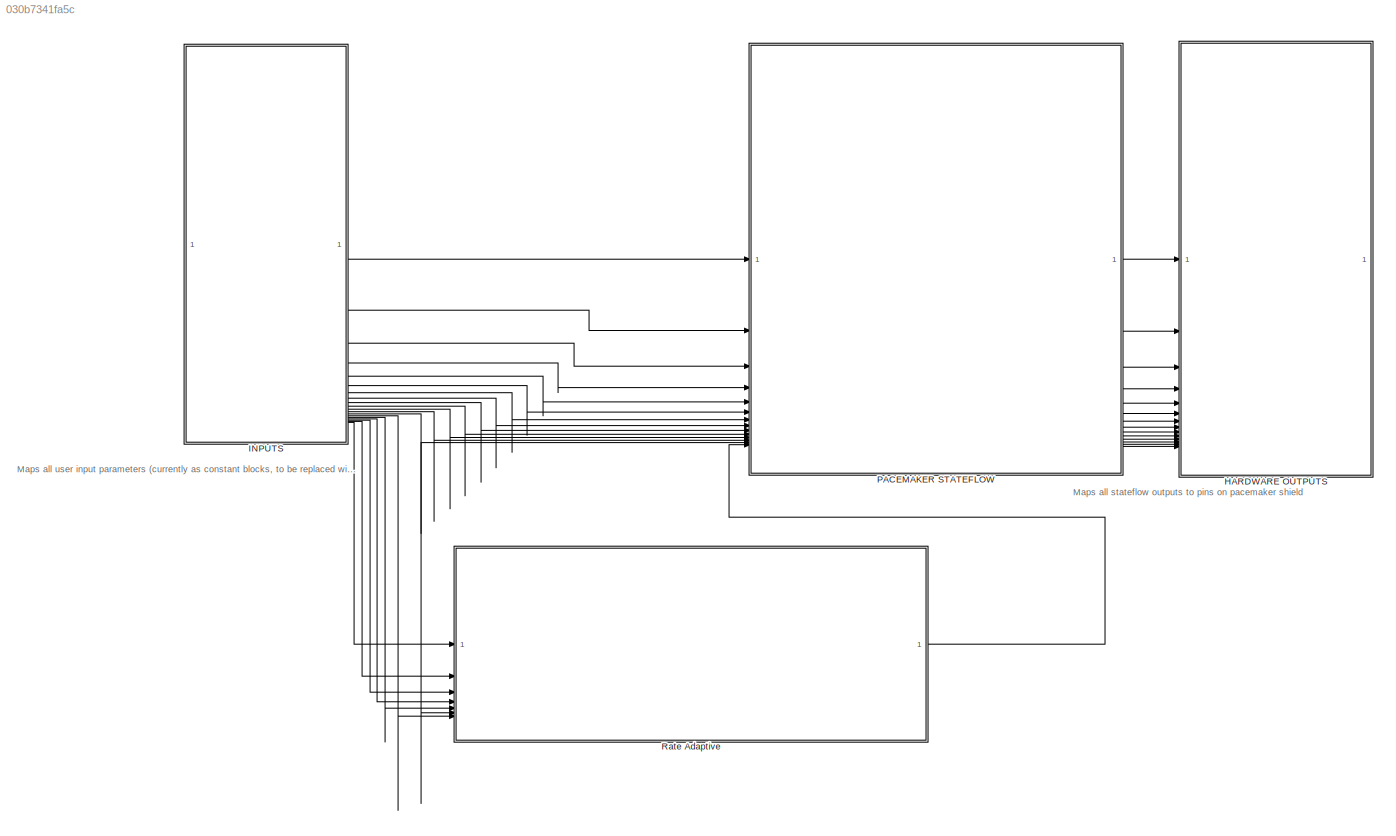
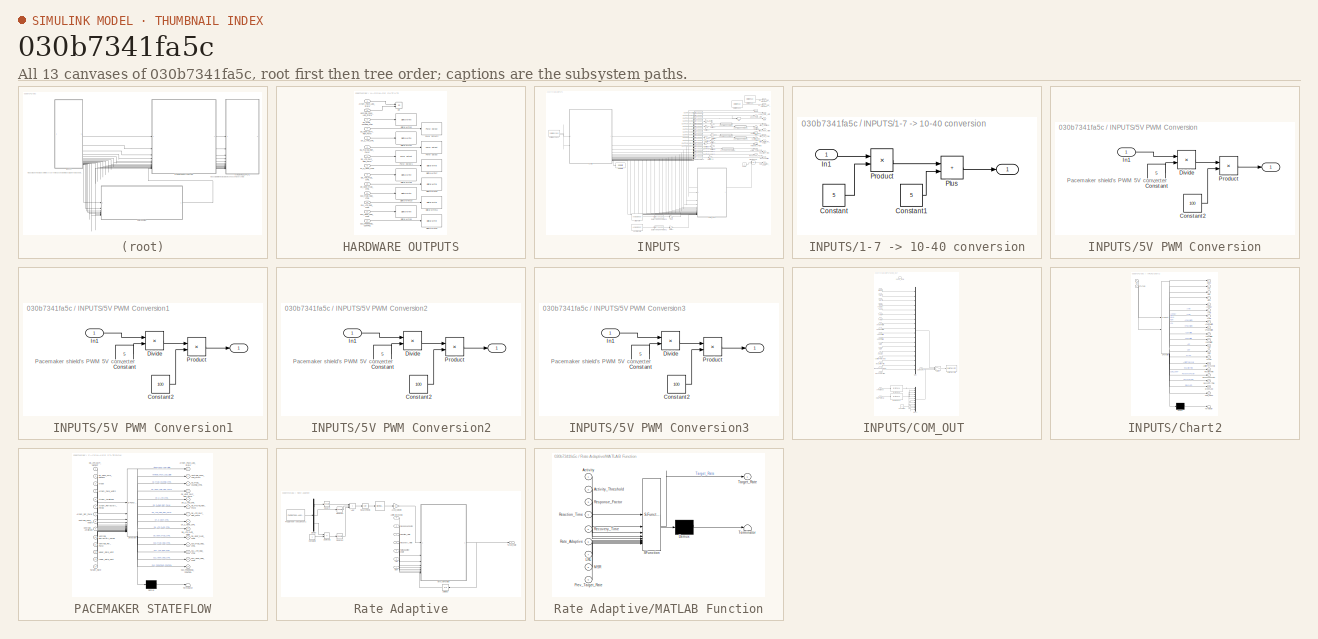
[diagram: thumbnail index - all 13 canvases of the model, root first then tree order]
MODEL slx_030b7341fa5c
KIND model
CONFIG AbsTol = auto
CONFIG EnableMultiTasking = on
CONFIG FixedStep = 1e-3
CONFIG MaxStep = auto
CONFIG MinStep = auto
CONFIG RelTol = 1e-3
CONFIG SampleTimeConstraint = Unconstrained
CONFIG SolverName = FixedStepAuto
CONFIG StartTime = 0.0
CONFIG StopTime = 100
BLOCK [SubSystem] HARDWARE OUTPUTS
BLOCK [Inport] HARDWARE OUTPUTS/Atrium_Pace_LED_State
BLOCK [Inport] HARDWARE OUTPUTS/D10_PACE_GND_CTRL
  Port = 11
BLOCK [Inport] HARDWARE OUTPUTS/D11_ATR_GND_CTRL
  Port = 12
BLOCK [Inport] HARDWARE OUTPUTS/D12_VENT_GND_CTRL
  Port = 13
BLOCK [Inport] HARDWARE OUTPUTS/D13_FRONTEND_CONTROL
  Port = 14
BLOCK [Inport] HARDWARE OUTPUTS/D2_PACE_CHARGE_CTRL
  Port = 3
BLOCK [Inport] HARDWARE OUTPUTS/D3_VENT_CMP_REF_PWM
  Port = 4
BLOCK [Inport] HARDWARE OUTPUTS/D4_Z_ATR_CTRL
  Port = 5
BLOCK [Inport] HARDWARE OUTPUTS/D5_PACING_REF_PWM
  Port = 6
BLOCK [Inport] HARDWARE OUTPUTS/D6_ATR_CMP_REF_PWM
  Port = 7
BLOCK [Inport] HARDWARE OUTPUTS/D7_Z_VENT_CTRL
  Port = 8
BLOCK [Inport] HARDWARE OUTPUTS/D8_ATR_PACE_CTRL
  Port = 9
BLOCK [Inport] HARDWARE OUTPUTS/D9_VENT_PACE_CTRL
  Port = 10
BLOCK [Reference] HARDWARE OUTPUTS/Digital Write10  REF=frdmk64flib/Digital Write
  SourceBlock = frdmk64flib/Digital Write
  SourceType = freedomk64f.DigitalWrite
BLOCK [Reference] HARDWARE OUTPUTS/Digital Write11  REF=frdmk64flib/Digital Write
  SourceBlock = frdmk64flib/Digital Write
  SourceType = freedomk64f.DigitalWrite
BLOCK [Reference] HARDWARE OUTPUTS/Digital Write2  REF=frdmk64flib/Digital Write
  SourceBlock = frdmk64flib/Digital Write
  SourceType = freedomk64f.DigitalWrite
BLOCK [Reference] HARDWARE OUTPUTS/Digital Write4  REF=frdmk64flib/Digital Write
  SourceBlock = frdmk64flib/Digital Write
  SourceType = freedomk64f.DigitalWrite
BLOCK [Reference] HARDWARE OUTPUTS/Digital Write5  REF=frdmk64flib/Digital Write
  SourceBlock = frdmk64flib/Digital Write
  SourceType = freedomk64f.DigitalWrite
BLOCK [Reference] HARDWARE OUTPUTS/Digital Write6  REF=frdmk64flib/Digital Write
  SourceBlock = frdmk64flib/Digital Write
  SourceType = freedomk64f.DigitalWrite
BLOCK [Reference] HARDWARE OUTPUTS/Digital Write7  REF=frdmk64flib/Digital Write
  SourceBlock = frdmk64flib/Digital Write
  SourceType = freedomk64f.DigitalWrite
BLOCK [Reference] HARDWARE OUTPUTS/Digital Write8  REF=frdmk64flib/Digital Write
  SourceBlock = frdmk64flib/Digital Write
  SourceType = freedomk64f.DigitalWrite
BLOCK [Reference] HARDWARE OUTPUTS/Digital Write9  REF=frdmk64flib/Digital Write
  SourceBlock = frdmk64flib/Digital Write
  SourceType = freedomk64f.DigitalWrite
BLOCK [Logic] HARDWARE OUTPUTS/OR
  AllPortsSameDT = off
  IconShape = distinctive
  Operator = OR
  OutDataTypeStr = boolean
BLOCK [Reference] HARDWARE OUTPUTS/PWM Output  REF=frdmk64flib/PWM Output
  SourceBlock = frdmk64flib/PWM Output
  SourceType = freedomk64f.PWMOutput
BLOCK [Reference] HARDWARE OUTPUTS/PWM Output1  REF=frdmk64flib/PWM Output
  SourceBlock = frdmk64flib/PWM Output
  SourceType = freedomk64f.PWMOutput
BLOCK [Reference] HARDWARE OUTPUTS/PWM Output2  REF=frdmk64flib/PWM Output
  SourceBlock = frdmk64flib/PWM Output
  SourceType = freedomk64f.PWMOutput
BLOCK [Inport] HARDWARE OUTPUTS/Ventricle_Pace_LED_State
  Port = 2
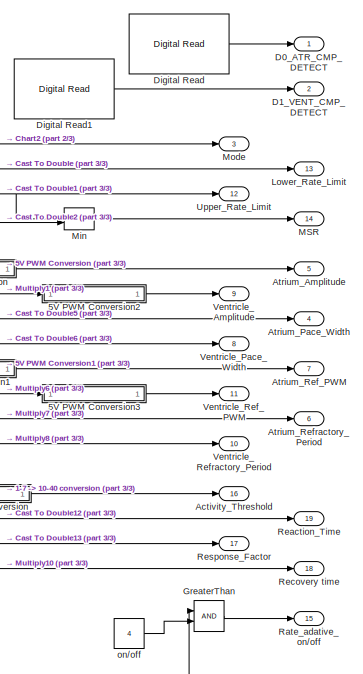
[diagram: INPUTS - part 1/3, top right region]
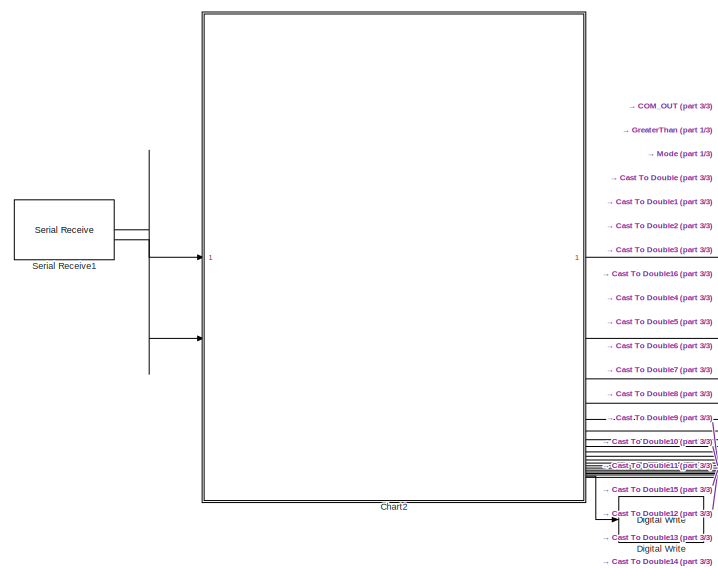
[diagram: INPUTS - part 2/3, middle left region]
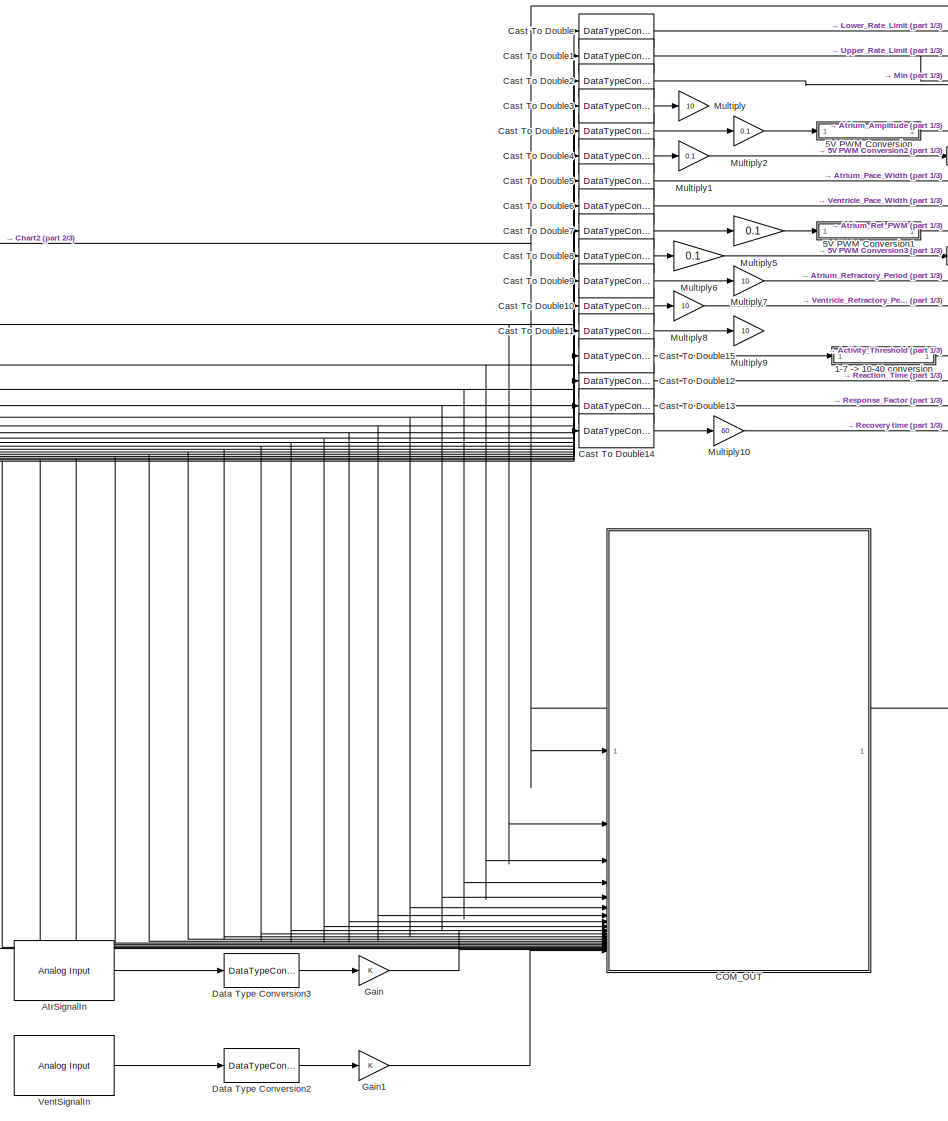
[diagram: INPUTS - part 3/3, center side, full height]
BLOCK [SubSystem] INPUTS
BLOCK [SubSystem] INPUTS/1-7 -> 10-40 conversion
BLOCK [Outport] INPUTS/1-7 -> 10-40 conversion/ 
BLOCK [Constant] INPUTS/1-7 -> 10-40 conversion/Constant
  Value = 5
BLOCK [Constant] INPUTS/1-7 -> 10-40 conversion/Constant1
  Value = 5
BLOCK [Inport] INPUTS/1-7 -> 10-40 conversion/In1
BLOCK [Sum] INPUTS/1-7 -> 10-40 conversion/Plus
  IconShape = rectangular
BLOCK [Product] INPUTS/1-7 -> 10-40 conversion/Product
BLOCK [SubSystem] INPUTS/5V PWM Conversion
BLOCK [Outport] INPUTS/5V PWM Conversion/ 
BLOCK [Constant] INPUTS/5V PWM Conversion/Constant
  Value = 5
BLOCK [Constant] INPUTS/5V PWM Conversion/Constant2
  Value = 100
BLOCK [Product] INPUTS/5V PWM Conversion/Divide
  Inputs = */
BLOCK [Inport] INPUTS/5V PWM Conversion/In1
BLOCK [Product] INPUTS/5V PWM Conversion/Product
BLOCK [SubSystem] INPUTS/5V PWM Conversion1
BLOCK [Outport] INPUTS/5V PWM Conversion1/ 
BLOCK [Constant] INPUTS/5V PWM Conversion1/Constant
  Value = 5
BLOCK [Constant] INPUTS/5V PWM Conversion1/Constant2
  Value = 100
BLOCK [Product] INPUTS/5V PWM Conversion1/Divide
  Inputs = */
BLOCK [Inport] INPUTS/5V PWM Conversion1/In1
BLOCK [Product] INPUTS/5V PWM Conversion1/Product
BLOCK [SubSystem] INPUTS/5V PWM Conversion2
BLOCK [Outport] INPUTS/5V PWM Conversion2/ 
BLOCK [Constant] INPUTS/5V PWM Conversion2/Constant
  Value = 5
BLOCK [Constant] INPUTS/5V PWM Conversion2/Constant2
  Value = 100
BLOCK [Product] INPUTS/5V PWM Conversion2/Divide
  Inputs = */
BLOCK [Inport] INPUTS/5V PWM Conversion2/In1
BLOCK [Product] INPUTS/5V PWM Conversion2/Product
BLOCK [SubSystem] INPUTS/5V PWM Conversion3
BLOCK [Outport] INPUTS/5V PWM Conversion3/ 
BLOCK [Constant] INPUTS/5V PWM Conversion3/Constant
  Value = 5
BLOCK [Constant] INPUTS/5V PWM Conversion3/Constant2
  Value = 100
BLOCK [Product] INPUTS/5V PWM Conversion3/Divide
  Inputs = */
BLOCK [Inport] INPUTS/5V PWM Conversion3/In1
BLOCK [Product] INPUTS/5V PWM Conversion3/Product
BLOCK [Outport] INPUTS/Activity_Threshold
  Port = 16
BLOCK [Reference] INPUTS/AtrSignalIn  REF=frdmk64flib/Analog Input
  SourceBlock = frdmk64flib/Analog Input
  SourceType = freedomk64f.AnalogInput
BLOCK [Outport] INPUTS/Atrium_Amplitude
  Port = 5
BLOCK [Outport] INPUTS/Atrium_Pace_Width
  Port = 4
BLOCK [Outport] INPUTS/Atrium_Ref_PWM
  Port = 7
BLOCK [Outport] INPUTS/Atrium_Refractory_Period
  Port = 6
BLOCK [SubSystem] INPUTS/COM_OUT 
  TreatAsAtomicUnit = on
BLOCK [Inport] INPUTS/COM_OUT /AAmp
  Port = 6
BLOCK [Inport] INPUTS/COM_OUT /APulseWidth
  Port = 8
BLOCK [Inport] INPUTS/COM_OUT /ARP
  Port = 12
BLOCK [Inport] INPUTS/COM_OUT /ASensitivity
  Port = 10
BLOCK [Inport] INPUTS/COM_OUT /ATRSignal
  Port = 20
BLOCK [Inport] INPUTS/COM_OUT /AVDelay
  Port = 5
BLOCK [Inport] INPUTS/COM_OUT /ActivityThreshold
  Port = 15
BLOCK [Reference] INPUTS/COM_OUT /Byte Pack  REF=etargetslib/Byte Pack
  LibrarySourceBlock = embeddedtargetslib/Host Communication/Byte Pack
  SourceBlock = etargetslib/Byte Pack
  SourceType = Byte pack
BLOCK [Reference] INPUTS/COM_OUT /Byte Pack1  REF=etargetslib/Byte Pack
  LibrarySourceBlock = embeddedtargetslib/Host Communication/Byte Pack
  SourceBlock = etargetslib/Byte Pack
  SourceType = Byte pack
BLOCK [Inport] INPUTS/COM_OUT /COM_SWAP
  Port = 19
BLOCK [Constant] INPUTS/COM_OUT /Constant1
  OutDataTypeStr = uint8
  Value = 0
BLOCK [Inport] INPUTS/COM_OUT /LRL
  Port = 2
BLOCK [Inport] INPUTS/COM_OUT /MSR
  Port = 4
BLOCK [Inport] INPUTS/COM_OUT /Mode
BLOCK [Mux] INPUTS/COM_OUT /Mux
  DisplayOption = bar
  Inputs = 18
BLOCK [Mux] INPUTS/COM_OUT /Mux1
  DisplayOption = bar
  Inputs = 12
BLOCK [Inport] INPUTS/COM_OUT /PVARP
  Port = 14
BLOCK [Inport] INPUTS/COM_OUT /ReactionTime
  Port = 16
BLOCK [Inport] INPUTS/COM_OUT /RecoveryTime
  Port = 18
BLOCK [Inport] INPUTS/COM_OUT /ResponseFactor
  Port = 17
BLOCK [Reference] INPUTS/COM_OUT /Serial Transmit1  REF=frdmk64flib/Serial Transmit
  SourceBlock = frdmk64flib/Serial Transmit
  SourceType = freedomk64f.SCIWrite
BLOCK [Switch] INPUTS/COM_OUT /Switch
  Criteria = u2 ~= 0
  InputSameDT = off
  SaturateOnIntegerOverflow = off
BLOCK [Inport] INPUTS/COM_OUT /URL
  Port = 3
BLOCK [Inport] INPUTS/COM_OUT /VAmp
  Port = 7
BLOCK [Inport] INPUTS/COM_OUT /VENTSignal
  Port = 21
BLOCK [Inport] INPUTS/COM_OUT /VPulseWidth
  Port = 9
BLOCK [Inport] INPUTS/COM_OUT /VRP
  Port = 13
BLOCK [Inport] INPUTS/COM_OUT /VSensitivity
  Port = 11
BLOCK [TriggerPort] INPUTS/COM_OUT /send_DCM
  FunctionName = send_DCM
  IsSimulinkFunction = on
  StatesWhenEnabling = held
  TriggerType = function-call
  VariantControl = (inherit)
BLOCK [DataTypeConversion] INPUTS/Cast To Double
  OutDataTypeStr = double
  RndMeth = Floor
  SaturateOnIntegerOverflow = off
BLOCK [DataTypeConversion] INPUTS/Cast To Double1
  OutDataTypeStr = double
  RndMeth = Floor
  SaturateOnIntegerOverflow = off
BLOCK [DataTypeConversion] INPUTS/Cast To Double10
  OutDataTypeStr = double
  RndMeth = Floor
  SaturateOnIntegerOverflow = off
BLOCK [DataTypeConversion] INPUTS/Cast To Double11
  OutDataTypeStr = double
  RndMeth = Floor
  SaturateOnIntegerOverflow = off
BLOCK [DataTypeConversion] INPUTS/Cast To Double12
  OutDataTypeStr = double
  RndMeth = Floor
  SaturateOnIntegerOverflow = off
BLOCK [DataTypeConversion] INPUTS/Cast To Double13
  OutDataTypeStr = double
  RndMeth = Floor
  SaturateOnIntegerOverflow = off
BLOCK [DataTypeConversion] INPUTS/Cast To Double14
  OutDataTypeStr = double
  RndMeth = Floor
  SaturateOnIntegerOverflow = off
BLOCK [DataTypeConversion] INPUTS/Cast To Double15
  OutDataTypeStr = double
  RndMeth = Floor
  SaturateOnIntegerOverflow = off
BLOCK [DataTypeConversion] INPUTS/Cast To Double16
  OutDataTypeStr = double
  RndMeth = Floor
  SaturateOnIntegerOverflow = off
BLOCK [DataTypeConversion] INPUTS/Cast To Double2
  OutDataTypeStr = double
  RndMeth = Floor
  SaturateOnIntegerOverflow = off
BLOCK [DataTypeConversion] INPUTS/Cast To Double3
  OutDataTypeStr = double
  RndMeth = Floor
  SaturateOnIntegerOverflow = off
BLOCK [DataTypeConversion] INPUTS/Cast To Double4
  OutDataTypeStr = double
  RndMeth = Floor
  SaturateOnIntegerOverflow = off
BLOCK [DataTypeConversion] INPUTS/Cast To Double5
  OutDataTypeStr = double
  RndMeth = Floor
  SaturateOnIntegerOverflow = off
BLOCK [DataTypeConversion] INPUTS/Cast To Double6
  OutDataTypeStr = double
  RndMeth = Floor
  SaturateOnIntegerOverflow = off
BLOCK [DataTypeConversion] INPUTS/Cast To Double7
  OutDataTypeStr = double
  RndMeth = Floor
  SaturateOnIntegerOverflow = off
BLOCK [DataTypeConversion] INPUTS/Cast To Double8
  OutDataTypeStr = double
  RndMeth = Floor
  SaturateOnIntegerOverflow = off
BLOCK [DataTypeConversion] INPUTS/Cast To Double9
  OutDataTypeStr = double
  RndMeth = Floor
  SaturateOnIntegerOverflow = off
BLOCK [SubSystem] INPUTS/Chart2
  ErrorFcn = Stateflow.Translate.translate
  PermitHierarchicalResolution = ExplicitOnly
  PortSchema = {"entries":[{"content":{"sides":[{"content":{"connectorIds":["In1","In2"]},"type":"ConnectorPlacement.EquallySpacedRectSide","uuid":"ffb3d753-dbd9-4cc9-b3f6-be85e99fedf4"},{"content":{"connectorIds":["Out1","Out2","Out3","Out4","Out5","Out6","Out7","Out8","Out9","Out10","Out11","Out12","Out13","Out14","Out15","Out16","Out17","Out18","Out20","Out19"],"side":"RIGHT"},"type":"ConnectorPlacement.Equal...<+372ch>
  SFBlockType = Chart
  TreatAsAtomicUnit = on
BLOCK [Demux] INPUTS/Chart2/ Demux 
  Outputs = 1
BLOCK [S-Function] INPUTS/Chart2/ SFunction 
  EnableBusSupport = on
  FunctionName = sf_sfun
  PortCounts = [2 21]
  SFcnIsStateOwnerBlock = off
  SFunctionDeploymentMode = off
  Tag = Stateflow S-Function 4
BLOCK [Terminator] INPUTS/Chart2/ Terminator 
BLOCK [Outport] INPUTS/Chart2/AAmp
  Port = 6
BLOCK [Outport] INPUTS/Chart2/APulseWidth
  Port = 8
BLOCK [Outport] INPUTS/Chart2/ARP
  Port = 12
BLOCK [Outport] INPUTS/Chart2/ASensitivity
  Port = 10
BLOCK [Outport] INPUTS/Chart2/AVDelay
  Port = 5
BLOCK [Outport] INPUTS/Chart2/ActivityThreshold
  Port = 15
BLOCK [Outport] INPUTS/Chart2/COM_SWAP
  Port = 20
BLOCK [Outport] INPUTS/Chart2/GreenLED
  Port = 19
BLOCK [Outport] INPUTS/Chart2/LRL
  Port = 2
BLOCK [Outport] INPUTS/Chart2/MSR
  Port = 4
BLOCK [Outport] INPUTS/Chart2/Mode
BLOCK [Outport] INPUTS/Chart2/PVARP
  Port = 14
BLOCK [Inport] INPUTS/Chart2/RX
BLOCK [Outport] INPUTS/Chart2/ReactionTime
  Port = 16
BLOCK [Outport] INPUTS/Chart2/RecoveryTime
  Port = 18
BLOCK [Outport] INPUTS/Chart2/ResponseFactor
  Port = 17
BLOCK [Inport] INPUTS/Chart2/STATUS
  Port = 2
BLOCK [Outport] INPUTS/Chart2/URL
  Port = 3
BLOCK [Outport] INPUTS/Chart2/VAmp
  Port = 7
BLOCK [Outport] INPUTS/Chart2/VPulseWidth
  Port = 9
BLOCK [Outport] INPUTS/Chart2/VRP
  Port = 13
BLOCK [Outport] INPUTS/Chart2/VSensitivity
  Port = 11
BLOCK [Outport] INPUTS/D0_ATR_CMP_DETECT
BLOCK [Outport] INPUTS/D1_VENT_CMP_DETECT
  Port = 2
BLOCK [DataTypeConversion] INPUTS/Data Type Conversion2
  OutDataTypeStr = single
  RndMeth = Nearest
  SaturateOnIntegerOverflow = off
BLOCK [DataTypeConversion] INPUTS/Data Type Conversion3
  OutDataTypeStr = single
  RndMeth = Nearest
  SaturateOnIntegerOverflow = off
BLOCK [Reference] INPUTS/Digital Read  REF=frdmk64flib/Digital Read
  SourceBlock = frdmk64flib/Digital Read
  SourceType = freedomk64f.DigitalRead
BLOCK [Reference] INPUTS/Digital Read1  REF=frdmk64flib/Digital Read
  SourceBlock = frdmk64flib/Digital Read
  SourceType = freedomk64f.DigitalRead
BLOCK [Reference] INPUTS/Digital Write  REF=frdmk64flib/Digital Write
  SourceBlock = frdmk64flib/Digital Write
  SourceType = freedomk64f.DigitalWrite
BLOCK [Gain] INPUTS/Gain
BLOCK [Gain] INPUTS/Gain1
BLOCK [RelationalOperator] INPUTS/GreaterThan
  InputSameDT = off
  OutDataTypeStr = boolean
  RndMeth = Simplest
BLOCK [Outport] INPUTS/Lower_Rate_Limit
  Port = 13
BLOCK [Outport] INPUTS/MSR
  Port = 14
BLOCK [MinMax] INPUTS/Min
  Inputs = 2
BLOCK [Outport] INPUTS/Mode
  Port = 3
BLOCK [Gain] INPUTS/Multiply
  Gain = 10
BLOCK [Gain] INPUTS/Multiply1
  Gain = 0.1
BLOCK [Gain] INPUTS/Multiply10
  Gain = 60
BLOCK [Gain] INPUTS/Multiply2
  Gain = 0.1
BLOCK [Gain] INPUTS/Multiply5
  Gain = 0.1
BLOCK [Gain] INPUTS/Multiply6
  Gain = 0.1
BLOCK [Gain] INPUTS/Multiply7
  Gain = 10
BLOCK [Gain] INPUTS/Multiply8
  Gain = 10
BLOCK [Gain] INPUTS/Multiply9
  Gain = 10
BLOCK [Outport] INPUTS/Rate_adative_ on//off
  Port = 15
BLOCK [Outport] INPUTS/Reaction_Time
  Port = 19
BLOCK [Outport] INPUTS/Recovery time
  Port = 18
BLOCK [Outport] INPUTS/Response_Factor
  Port = 17
BLOCK [Reference] INPUTS/Serial Receive1  REF=frdmk64flib/Serial Receive
  SourceBlock = frdmk64flib/Serial Receive
  SourceType = freedomk64f.SCIRead
BLOCK [Outport] INPUTS/Upper_Rate_Limit
  Port = 12
BLOCK [Reference] INPUTS/VentSignalIn  REF=frdmk64flib/Analog Input
  SourceBlock = frdmk64flib/Analog Input
  SourceType = freedomk64f.AnalogInput
BLOCK [Outport] INPUTS/Ventricle_Amplitude
  Port = 9
BLOCK [Outport] INPUTS/Ventricle_Pace_Width
  Port = 8
BLOCK [Outport] INPUTS/Ventricle_Ref_PWM
  Port = 11
BLOCK [Outport] INPUTS/Ventricle_Refractory_Period
  Port = 10
BLOCK [Constant] INPUTS/on//off
  Value = 4
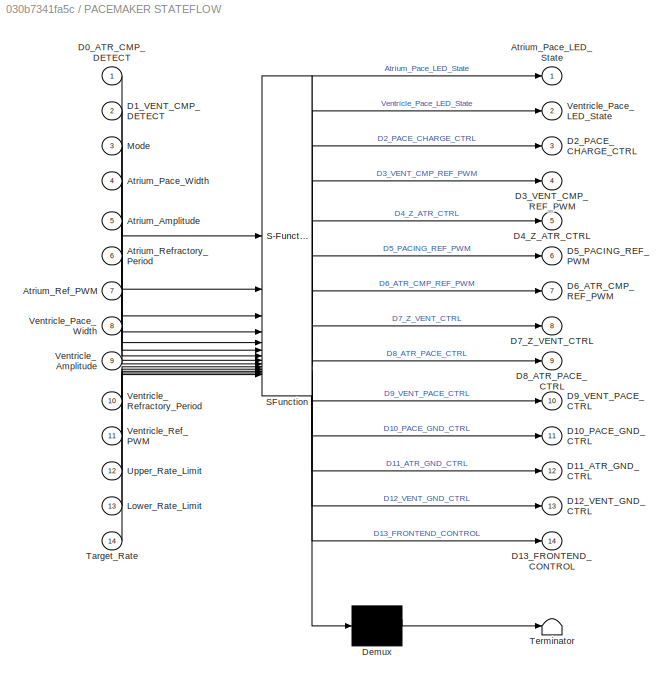
BLOCK [SubSystem] PACEMAKER STATEFLOW
  ErrorFcn = Stateflow.Translate.translate
  PermitHierarchicalResolution = ExplicitOnly
  SFBlockType = Chart
  TreatAsAtomicUnit = on
BLOCK [Demux] PACEMAKER STATEFLOW/ Demux 
  Outputs = 1
BLOCK [S-Function] PACEMAKER STATEFLOW/ SFunction 
  EnableBusSupport = on
  FunctionName = sf_sfun
  PortCounts = [14 15]
  SFcnIsStateOwnerBlock = off
  SFunctionDeploymentMode = off
  Tag = Stateflow S-Function 3
BLOCK [Terminator] PACEMAKER STATEFLOW/ Terminator 
BLOCK [Inport] PACEMAKER STATEFLOW/Atrium_Amplitude
  Port = 5
BLOCK [Outport] PACEMAKER STATEFLOW/Atrium_Pace_LED_State
BLOCK [Inport] PACEMAKER STATEFLOW/Atrium_Pace_Width
  Port = 4
BLOCK [Inport] PACEMAKER STATEFLOW/Atrium_Ref_PWM
  Port = 7
BLOCK [Inport] PACEMAKER STATEFLOW/Atrium_Refractory_Period
  Port = 6
BLOCK [Inport] PACEMAKER STATEFLOW/D0_ATR_CMP_DETECT
BLOCK [Outport] PACEMAKER STATEFLOW/D10_PACE_GND_CTRL
  Port = 11
BLOCK [Outport] PACEMAKER STATEFLOW/D11_ATR_GND_CTRL
  Port = 12
BLOCK [Outport] PACEMAKER STATEFLOW/D12_VENT_GND_CTRL
  Port = 13
BLOCK [Outport] PACEMAKER STATEFLOW/D13_FRONTEND_CONTROL
  Port = 14
BLOCK [Inport] PACEMAKER STATEFLOW/D1_VENT_CMP_DETECT
  Port = 2
BLOCK [Outport] PACEMAKER STATEFLOW/D2_PACE_CHARGE_CTRL
  Port = 3
BLOCK [Outport] PACEMAKER STATEFLOW/D3_VENT_CMP_REF_PWM
  Port = 4
BLOCK [Outport] PACEMAKER STATEFLOW/D4_Z_ATR_CTRL
  Port = 5
BLOCK [Outport] PACEMAKER STATEFLOW/D5_PACING_REF_PWM
  Port = 6
BLOCK [Outport] PACEMAKER STATEFLOW/D6_ATR_CMP_REF_PWM
  Port = 7
BLOCK [Outport] PACEMAKER STATEFLOW/D7_Z_VENT_CTRL
  Port = 8
BLOCK [Outport] PACEMAKER STATEFLOW/D8_ATR_PACE_CTRL
  Port = 9
BLOCK [Outport] PACEMAKER STATEFLOW/D9_VENT_PACE_CTRL
  Port = 10
BLOCK [Inport] PACEMAKER STATEFLOW/Lower_Rate_Limit
  Port = 13
BLOCK [Inport] PACEMAKER STATEFLOW/Mode
  Port = 3
BLOCK [Inport] PACEMAKER STATEFLOW/Target_Rate
  Port = 14
BLOCK [Inport] PACEMAKER STATEFLOW/Upper_Rate_Limit
  Port = 12
BLOCK [Inport] PACEMAKER STATEFLOW/Ventricle_Amplitude
  Port = 9
BLOCK [Outport] PACEMAKER STATEFLOW/Ventricle_Pace_LED_State
  Port = 2
BLOCK [Inport] PACEMAKER STATEFLOW/Ventricle_Pace_Width
  Port = 8
BLOCK [Inport] PACEMAKER STATEFLOW/Ventricle_Ref_PWM
  Port = 11
BLOCK [Inport] PACEMAKER STATEFLOW/Ventricle_Refractory_Period
  Port = 10
BLOCK [SubSystem] Rate Adaptive
BLOCK [Reference] Rate Adaptive/   REF=dspstat3/Moving
Average
  SourceBlock = dspstat3/Moving\nAverage
  SourceType = dsp.simulink.MovingAverage
BLOCK [Gain] Rate Adaptive/Accel_Smooth
  Gain = 20
BLOCK [Inport] Rate Adaptive/Activity_threshold
  Port = 4
BLOCK [Sum] Rate Adaptive/Add
  IconShape = rectangular
  Inputs = +++
BLOCK [Constant] Rate Adaptive/Constant2
BLOCK [Demux] Rate Adaptive/Demux
  Outputs = 3
BLOCK [Reference] Rate Adaptive/FXOS8700 6-Axes Sensor1  REF=frdmk64flib/FXOS8700 6-Axes Sensor
  SourceBlock = frdmk64flib/FXOS8700 6-Axes Sensor
  SourceType = freedomk64f.fxos8700
BLOCK [Inport] Rate Adaptive/LRL
  Port = 6
BLOCK [SubSystem] Rate Adaptive/MATLAB Function
  ErrorFcn = Stateflow.Translate.translate
  PermitHierarchicalResolution = ExplicitOnly
  SFBlockType = MATLAB Function
  TreatAsAtomicUnit = on
BLOCK [Demux] Rate Adaptive/MATLAB Function/ Demux 
  Outputs = 1
BLOCK [S-Function] Rate Adaptive/MATLAB Function/ SFunction 
  EnableBusSupport = on
  FunctionName = sf_sfun
  PortCounts = [9 2]
  SFcnIsStateOwnerBlock = off
  SFunctionDeploymentMode = off
  Tag = Stateflow S-Function 2
BLOCK [Terminator] Rate Adaptive/MATLAB Function/ Terminator 
BLOCK [Inport] Rate Adaptive/MATLAB Function/Activity
BLOCK [Inport] Rate Adaptive/MATLAB Function/Activity_Threshold
  Port = 2
BLOCK [Inport] Rate Adaptive/MATLAB Function/LRL
  Port = 7
BLOCK [Inport] Rate Adaptive/MATLAB Function/MSR
  Port = 8
BLOCK [Inport] Rate Adaptive/MATLAB Function/Prev_Target_Rate
  Port = 9
BLOCK [Inport] Rate Adaptive/MATLAB Function/Rate_Adaptive
  Port = 6
BLOCK [Inport] Rate Adaptive/MATLAB Function/Reaction_Time
  Port = 4
BLOCK [Inport] Rate Adaptive/MATLAB Function/Recovery_Time
  Port = 5
BLOCK [Inport] Rate Adaptive/MATLAB Function/Response_Factor
  Port = 3
BLOCK [Outport] Rate Adaptive/MATLAB Function/Target_Rate
BLOCK [Inport] Rate Adaptive/MSR
  Port = 7
BLOCK [Inport] Rate Adaptive/Rate adaptive on//off
  Port = 5
BLOCK [Inport] Rate Adaptive/Reaction_Time
BLOCK [Inport] Rate Adaptive/Recovery_Time
  Port = 2
BLOCK [Inport] Rate Adaptive/Response Factor
  Port = 3
BLOCK [Math] Rate Adaptive/Square
  Operator = square
BLOCK [Sqrt] Rate Adaptive/Square Root1
BLOCK [Math] Rate Adaptive/Square1
  Operator = square
BLOCK [Math] Rate Adaptive/Square2
  Operator = square
BLOCK [Sum] Rate Adaptive/Subtract1
  IconShape = rectangular
  Inputs = +-
BLOCK [Outport] Rate Adaptive/Target_Rate
BLOCK [UnitDelay] Rate Adaptive/Unit Delay
  HasFrameUpgradeWarning = on
  SampleTime = -1
ANNOTATION (root): Maps all stateflow outputs to pins on pacemaker shield
ANNOTATION (root): Maps all user input parameters (currently as constant blocks, to be replaced with serial communication in later stage)
ANNOTATION INPUTS/5V PWM Conversion: Pacemaker shield's PWM 5V converter
ANNOTATION INPUTS/5V PWM Conversion1: Pacemaker shield's PWM 5V converter
ANNOTATION INPUTS/5V PWM Conversion2: Pacemaker shield's PWM 5V converter
ANNOTATION INPUTS/5V PWM Conversion3: Pacemaker shield's PWM 5V converter
LINE HARDWARE OUTPUTS/Atrium_Pace_LED_State:1 -> HARDWARE OUTPUTS/OR:1
LINE HARDWARE OUTPUTS/D10_PACE_GND_CTRL:1 -> HARDWARE OUTPUTS/Digital Write10:1
LINE HARDWARE OUTPUTS/D11_ATR_GND_CTRL:1 -> HARDWARE OUTPUTS/Digital Write11:1
LINE HARDWARE OUTPUTS/D12_VENT_GND_CTRL:1 -> HARDWARE OUTPUTS/Digital Write5:1
LINE HARDWARE OUTPUTS/D13_FRONTEND_CONTROL:1 -> HARDWARE OUTPUTS/Digital Write6:1
LINE HARDWARE OUTPUTS/D2_PACE_CHARGE_CTRL:1 -> HARDWARE OUTPUTS/Digital Write2:1
LINE HARDWARE OUTPUTS/D3_VENT_CMP_REF_PWM:1 -> HARDWARE OUTPUTS/PWM Output2:1
LINE HARDWARE OUTPUTS/D4_Z_ATR_CTRL:1 -> HARDWARE OUTPUTS/Digital Write4:1
LINE HARDWARE OUTPUTS/D5_PACING_REF_PWM:1 -> HARDWARE OUTPUTS/PWM Output:1
LINE HARDWARE OUTPUTS/D6_ATR_CMP_REF_PWM:1 -> HARDWARE OUTPUTS/PWM Output1:1
LINE HARDWARE OUTPUTS/D7_Z_VENT_CTRL:1 -> HARDWARE OUTPUTS/Digital Write7:1
LINE HARDWARE OUTPUTS/D8_ATR_PACE_CTRL:1 -> HARDWARE OUTPUTS/Digital Write8:1
LINE HARDWARE OUTPUTS/D9_VENT_PACE_CTRL:1 -> HARDWARE OUTPUTS/Digital Write9:1
LINE HARDWARE OUTPUTS/Ventricle_Pace_LED_State:1 -> HARDWARE OUTPUTS/OR:2
LINE INPUTS/1-7 -> 10-40 conversion/Constant1:1 -> INPUTS/1-7 -> 10-40 conversion/Plus:2
LINE INPUTS/1-7 -> 10-40 conversion/Constant:1 -> INPUTS/1-7 -> 10-40 conversion/Product:2
LINE INPUTS/1-7 -> 10-40 conversion/In1:1 -> INPUTS/1-7 -> 10-40 conversion/Product:1
LINE INPUTS/1-7 -> 10-40 conversion/Plus:1 -> INPUTS/1-7 -> 10-40 conversion/ :1
LINE INPUTS/1-7 -> 10-40 conversion/Product:1 -> INPUTS/1-7 -> 10-40 conversion/Plus:1
LINE INPUTS/1-7 -> 10-40 conversion:1 -> INPUTS/Activity_Threshold:1
LINE INPUTS/5V PWM Conversion/Constant2:1 -> INPUTS/5V PWM Conversion/Product:2
LINE INPUTS/5V PWM Conversion/Constant:1 -> INPUTS/5V PWM Conversion/Divide:2
LINE INPUTS/5V PWM Conversion/Divide:1 -> INPUTS/5V PWM Conversion/Product:1
LINE INPUTS/5V PWM Conversion/In1:1 -> INPUTS/5V PWM Conversion/Divide:1
LINE INPUTS/5V PWM Conversion/Product:1 -> INPUTS/5V PWM Conversion/ :1
LINE INPUTS/5V PWM Conversion1/Constant2:1 -> INPUTS/5V PWM Conversion1/Product:2
LINE INPUTS/5V PWM Conversion1/Constant:1 -> INPUTS/5V PWM Conversion1/Divide:2
LINE INPUTS/5V PWM Conversion1/Divide:1 -> INPUTS/5V PWM Conversion1/Product:1
LINE INPUTS/5V PWM Conversion1/In1:1 -> INPUTS/5V PWM Conversion1/Divide:1
LINE INPUTS/5V PWM Conversion1/Product:1 -> INPUTS/5V PWM Conversion1/ :1
LINE INPUTS/5V PWM Conversion1:1 -> INPUTS/Atrium_Ref_PWM:1
LINE INPUTS/5V PWM Conversion2/Constant2:1 -> INPUTS/5V PWM Conversion2/Product:2
LINE INPUTS/5V PWM Conversion2/Constant:1 -> INPUTS/5V PWM Conversion2/Divide:2
LINE INPUTS/5V PWM Conversion2/Divide:1 -> INPUTS/5V PWM Conversion2/Product:1
LINE INPUTS/5V PWM Conversion2/In1:1 -> INPUTS/5V PWM Conversion2/Divide:1
LINE INPUTS/5V PWM Conversion2/Product:1 -> INPUTS/5V PWM Conversion2/ :1
LINE INPUTS/5V PWM Conversion2:1 -> INPUTS/Ventricle_Amplitude:1
LINE INPUTS/5V PWM Conversion3/Constant2:1 -> INPUTS/5V PWM Conversion3/Product:2
LINE INPUTS/5V PWM Conversion3/Constant:1 -> INPUTS/5V PWM Conversion3/Divide:2
LINE INPUTS/5V PWM Conversion3/Divide:1 -> INPUTS/5V PWM Conversion3/Product:1
LINE INPUTS/5V PWM Conversion3/In1:1 -> INPUTS/5V PWM Conversion3/Divide:1
LINE INPUTS/5V PWM Conversion3/Product:1 -> INPUTS/5V PWM Conversion3/ :1
LINE INPUTS/5V PWM Conversion3:1 -> INPUTS/Ventricle_Ref_PWM:1
LINE INPUTS/5V PWM Conversion:1 -> INPUTS/Atrium_Amplitude:1
LINE INPUTS/AtrSignalIn:1 -> INPUTS/Data Type Conversion3:1
LINE INPUTS/COM_OUT /AAmp:1 -> INPUTS/COM_OUT /Mux:6
LINE INPUTS/COM_OUT /APulseWidth:1 -> INPUTS/COM_OUT /Mux:8
LINE INPUTS/COM_OUT /ARP:1 -> INPUTS/COM_OUT /Mux:12
LINE INPUTS/COM_OUT /ASensitivity:1 -> INPUTS/COM_OUT /Mux:10
LINE INPUTS/COM_OUT /ATRSignal:1 -> INPUTS/COM_OUT /Byte Pack:1
LINE INPUTS/COM_OUT /AVDelay:1 -> INPUTS/COM_OUT /Mux:5
LINE INPUTS/COM_OUT /ActivityThreshold:1 -> INPUTS/COM_OUT /Mux:15
LINE INPUTS/COM_OUT /Byte Pack1:1 -> INPUTS/COM_OUT /Mux1:2
LINE INPUTS/COM_OUT /Byte Pack:1 -> INPUTS/COM_OUT /Mux1:1
LINE INPUTS/COM_OUT /COM_SWAP:1 -> INPUTS/COM_OUT /Switch:2
NET INPUTS/COM_OUT /Constant1:1 -> INPUTS/COM_OUT /Mux1:10, INPUTS/COM_OUT /Mux1:11, INPUTS/COM_OUT /Mux1:12, INPUTS/COM_OUT /Mux1:3, INPUTS/COM_OUT /Mux1:4, INPUTS/COM_OUT /Mux1:5, INPUTS/COM_OUT /Mux1:6, INPUTS/COM_OUT /Mux1:7, INPUTS/COM_OUT /Mux1:8, INPUTS/COM_OUT /Mux1:9
LINE INPUTS/COM_OUT /LRL:1 -> INPUTS/COM_OUT /Mux:2
LINE INPUTS/COM_OUT /MSR:1 -> INPUTS/COM_OUT /Mux:4
LINE INPUTS/COM_OUT /Mode:1 -> INPUTS/COM_OUT /Mux:1
LINE INPUTS/COM_OUT /Mux1:1 -> INPUTS/COM_OUT /Switch:3
LINE INPUTS/COM_OUT /Mux:1 -> INPUTS/COM_OUT /Switch:1
LINE INPUTS/COM_OUT /PVARP:1 -> INPUTS/COM_OUT /Mux:14
LINE INPUTS/COM_OUT /ReactionTime:1 -> INPUTS/COM_OUT /Mux:16
LINE INPUTS/COM_OUT /RecoveryTime:1 -> INPUTS/COM_OUT /Mux:18
LINE INPUTS/COM_OUT /ResponseFactor:1 -> INPUTS/COM_OUT /Mux:17
LINE INPUTS/COM_OUT /Switch:1 -> INPUTS/COM_OUT /Serial Transmit1:1
LINE INPUTS/COM_OUT /URL:1 -> INPUTS/COM_OUT /Mux:3
LINE INPUTS/COM_OUT /VAmp:1 -> INPUTS/COM_OUT /Mux:7
LINE INPUTS/COM_OUT /VENTSignal:1 -> INPUTS/COM_OUT /Byte Pack1:1
LINE INPUTS/COM_OUT /VPulseWidth:1 -> INPUTS/COM_OUT /Mux:9
LINE INPUTS/COM_OUT /VRP:1 -> INPUTS/COM_OUT /Mux:13
LINE INPUTS/COM_OUT /VSensitivity:1 -> INPUTS/COM_OUT /Mux:11
LINE INPUTS/Cast To Double10:1 -> INPUTS/Multiply8:1
LINE INPUTS/Cast To Double11:1 -> INPUTS/Multiply9:1
LINE INPUTS/Cast To Double12:1 -> INPUTS/Reaction_Time:1
LINE INPUTS/Cast To Double13:1 -> INPUTS/Response_Factor:1
LINE INPUTS/Cast To Double14:1 -> INPUTS/Multiply10:1
LINE INPUTS/Cast To Double15:1 -> INPUTS/1-7 -> 10-40 conversion:1
LINE INPUTS/Cast To Double16:1 -> INPUTS/Multiply2:1
NET INPUTS/Cast To Double1:1 -> INPUTS/Min:1, INPUTS/Upper_Rate_Limit:1
LINE INPUTS/Cast To Double2:1 -> INPUTS/Min:2
LINE INPUTS/Cast To Double3:1 -> INPUTS/Multiply:1
LINE INPUTS/Cast To Double4:1 -> INPUTS/Multiply1:1
LINE INPUTS/Cast To Double5:1 -> INPUTS/Atrium_Pace_Width:1
LINE INPUTS/Cast To Double6:1 -> INPUTS/Ventricle_Pace_Width:1
LINE INPUTS/Cast To Double7:1 -> INPUTS/Multiply5:1
LINE INPUTS/Cast To Double8:1 -> INPUTS/Multiply6:1
LINE INPUTS/Cast To Double9:1 -> INPUTS/Multiply7:1
LINE INPUTS/Cast To Double:1 -> INPUTS/Lower_Rate_Limit:1
NET INPUTS/Chart2:1 -> INPUTS/COM_OUT :1, INPUTS/GreaterThan:1, INPUTS/Mode:1
NET INPUTS/Chart2:10 -> INPUTS/COM_OUT :10, INPUTS/Cast To Double7:1
NET INPUTS/Chart2:11 -> INPUTS/COM_OUT :11, INPUTS/Cast To Double8:1
NET INPUTS/Chart2:12 -> INPUTS/COM_OUT :12, INPUTS/Cast To Double9:1
NET INPUTS/Chart2:13 -> INPUTS/COM_OUT :13, INPUTS/Cast To Double10:1
NET INPUTS/Chart2:14 -> INPUTS/COM_OUT :14, INPUTS/Cast To Double11:1
NET INPUTS/Chart2:15 -> INPUTS/COM_OUT :15, INPUTS/Cast To Double15:1
NET INPUTS/Chart2:16 -> INPUTS/COM_OUT :16, INPUTS/Cast To Double12:1
NET INPUTS/Chart2:17 -> INPUTS/COM_OUT :17, INPUTS/Cast To Double13:1
NET INPUTS/Chart2:18 -> INPUTS/COM_OUT :18, INPUTS/Cast To Double14:1
LINE INPUTS/Chart2:19 -> INPUTS/Digital Write:1
NET INPUTS/Chart2:2 -> INPUTS/COM_OUT :2, INPUTS/Cast To Double:1
LINE INPUTS/Chart2:20 -> INPUTS/COM_OUT :19
NET INPUTS/Chart2:3 -> INPUTS/COM_OUT :3, INPUTS/Cast To Double1:1
NET INPUTS/Chart2:4 -> INPUTS/COM_OUT :4, INPUTS/Cast To Double2:1
NET INPUTS/Chart2:5 -> INPUTS/COM_OUT :5, INPUTS/Cast To Double3:1
NET INPUTS/Chart2:6 -> INPUTS/COM_OUT :6, INPUTS/Cast To Double16:1
NET INPUTS/Chart2:7 -> INPUTS/COM_OUT :7, INPUTS/Cast To Double4:1
NET INPUTS/Chart2:8 -> INPUTS/COM_OUT :8, INPUTS/Cast To Double5:1
NET INPUTS/Chart2:9 -> INPUTS/COM_OUT :9, INPUTS/Cast To Double6:1
LINE INPUTS/Data Type Conversion2:1 -> INPUTS/Gain1:1
LINE INPUTS/Data Type Conversion3:1 -> INPUTS/Gain:1
LINE INPUTS/Digital Read1:1 -> INPUTS/D1_VENT_CMP_DETECT:1
LINE INPUTS/Digital Read:1 -> INPUTS/D0_ATR_CMP_DETECT:1
LINE INPUTS/Gain1:1 -> INPUTS/COM_OUT :21
LINE INPUTS/Gain:1 -> INPUTS/COM_OUT :20
LINE INPUTS/GreaterThan:1 -> INPUTS/Rate_adative_ on//off:1
LINE INPUTS/Min:1 -> INPUTS/MSR:1
LINE INPUTS/Multiply10:1 -> INPUTS/Recovery time:1
LINE INPUTS/Multiply1:1 -> INPUTS/5V PWM Conversion2:1
LINE INPUTS/Multiply2:1 -> INPUTS/5V PWM Conversion:1
LINE INPUTS/Multiply5:1 -> INPUTS/5V PWM Conversion1:1
LINE INPUTS/Multiply6:1 -> INPUTS/5V PWM Conversion3:1
LINE INPUTS/Multiply7:1 -> INPUTS/Atrium_Refractory_Period:1
LINE INPUTS/Multiply8:1 -> INPUTS/Ventricle_Refractory_Period:1
LINE INPUTS/Serial Receive1:1 -> INPUTS/Chart2:1
LINE INPUTS/Serial Receive1:2 -> INPUTS/Chart2:2
LINE INPUTS/VentSignalIn:1 -> INPUTS/Data Type Conversion2:1
LINE INPUTS/on//off:1 -> INPUTS/GreaterThan:2
LINE INPUTS:1 -> PACEMAKER STATEFLOW:1
LINE INPUTS:10 -> PACEMAKER STATEFLOW:10
LINE INPUTS:11 -> PACEMAKER STATEFLOW:11
LINE INPUTS:12 -> PACEMAKER STATEFLOW:12
NET INPUTS:13 -> PACEMAKER STATEFLOW:13, Rate Adaptive:6
LINE INPUTS:14 -> Rate Adaptive:7
LINE INPUTS:15 -> Rate Adaptive:5
LINE INPUTS:16 -> Rate Adaptive:4
LINE INPUTS:17 -> Rate Adaptive:3
LINE INPUTS:18 -> Rate Adaptive:2
LINE INPUTS:19 -> Rate Adaptive:1
LINE INPUTS:2 -> PACEMAKER STATEFLOW:2
LINE INPUTS:3 -> PACEMAKER STATEFLOW:3
LINE INPUTS:4 -> PACEMAKER STATEFLOW:4
LINE INPUTS:5 -> PACEMAKER STATEFLOW:5
LINE INPUTS:6 -> PACEMAKER STATEFLOW:6
LINE INPUTS:7 -> PACEMAKER STATEFLOW:7
LINE INPUTS:8 -> PACEMAKER STATEFLOW:8
LINE INPUTS:9 -> PACEMAKER STATEFLOW:9
LINE PACEMAKER STATEFLOW:1 -> HARDWARE OUTPUTS:1
LINE PACEMAKER STATEFLOW:10 -> HARDWARE OUTPUTS:10
LINE PACEMAKER STATEFLOW:11 -> HARDWARE OUTPUTS:11
LINE PACEMAKER STATEFLOW:12 -> HARDWARE OUTPUTS:12
LINE PACEMAKER STATEFLOW:13 -> HARDWARE OUTPUTS:13
LINE PACEMAKER STATEFLOW:14 -> HARDWARE OUTPUTS:14
LINE PACEMAKER STATEFLOW:2 -> HARDWARE OUTPUTS:2
LINE PACEMAKER STATEFLOW:3 -> HARDWARE OUTPUTS:3
LINE PACEMAKER STATEFLOW:4 -> HARDWARE OUTPUTS:4
LINE PACEMAKER STATEFLOW:5 -> HARDWARE OUTPUTS:5
LINE PACEMAKER STATEFLOW:6 -> HARDWARE OUTPUTS:6
LINE PACEMAKER STATEFLOW:7 -> HARDWARE OUTPUTS:7
LINE PACEMAKER STATEFLOW:8 -> HARDWARE OUTPUTS:8
LINE PACEMAKER STATEFLOW:9 -> HARDWARE OUTPUTS:9
LINE Rate Adaptive/ :1 -> Rate Adaptive/Accel_Smooth:1
LINE Rate Adaptive/Accel_Smooth:1 -> Rate Adaptive/MATLAB Function:1
LINE Rate Adaptive/Activity_threshold:1 -> Rate Adaptive/MATLAB Function:2
LINE Rate Adaptive/Add:1 -> Rate Adaptive/Square Root1:1
LINE Rate Adaptive/Constant2:1 -> Rate Adaptive/Subtract1:2
LINE Rate Adaptive/Demux:1 -> Rate Adaptive/Square:1
LINE Rate Adaptive/Demux:2 -> Rate Adaptive/Square1:1
LINE Rate Adaptive/Demux:3 -> Rate Adaptive/Subtract1:1
LINE Rate Adaptive/FXOS8700 6-Axes Sensor1:1 -> Rate Adaptive/Demux:1
LINE Rate Adaptive/LRL:1 -> Rate Adaptive/MATLAB Function:7
NET Rate Adaptive/MATLAB Function:1 -> Rate Adaptive/Target_Rate:1, Rate Adaptive/Unit Delay:1
LINE Rate Adaptive/MSR:1 -> Rate Adaptive/MATLAB Function:8
LINE Rate Adaptive/Rate adaptive on//off:1 -> Rate Adaptive/MATLAB Function:6
LINE Rate Adaptive/Reaction_Time:1 -> Rate Adaptive/MATLAB Function:4
LINE Rate Adaptive/Recovery_Time:1 -> Rate Adaptive/MATLAB Function:5
LINE Rate Adaptive/Response Factor:1 -> Rate Adaptive/MATLAB Function:3
LINE Rate Adaptive/Square Root1:1 -> Rate Adaptive/ :1
LINE Rate Adaptive/Square1:1 -> Rate Adaptive/Add:2
LINE Rate Adaptive/Square2:1 -> Rate Adaptive/Add:3
LINE Rate Adaptive/Square:1 -> Rate Adaptive/Add:1
LINE Rate Adaptive/Subtract1:1 -> Rate Adaptive/Square2:1
LINE Rate Adaptive/Unit Delay:1 -> Rate Adaptive/MATLAB Function:9
LINE Rate Adaptive:1 -> PACEMAKER STATEFLOW:14
note: NET lines group one-source signal fan-out (src -> all destinations, sorted); 1:1 wires keep LINE
CHART Rate Adaptive/MATLAB Function states=1 transitions=1
  STATE_LABEL 'eML_blk_kernel()'
  STATE_LABEL 'SCRIPT:\nfunction Target_Rate   = Rate_Response(Activity,Activity_Threshold,Response_Factor,Reaction_Time,Recovery_Time,Rate_Adaptive,LRL,MSR,Prev_Target_Rate)\n\nActivity_diff = Activity-Activity_Threshold;\nif(Activity_diff < -10)\n    Activity_diff = -10;\nend\nActivity_Factor = 10*Response_Factor*(Activity_diff); %negative if below threshold\n\nderivative_Activity=diff(Activity);\n\nif(Rate_Adaptive==0)\n...<+413ch>'
CHART PACEMAKER STATEFLOW states=16 transitions=33
  STATE_LABEL 'AOO'
  STATE_LABEL 'Pace\n\nentry:\nD5_PACING_REF_PWM = 0\nD2_PACE_CHARGE_CTRL=0;\nD10_PACE_GND_CTRL=1;\nD8_ATR_PACE_CTRL=1;\nD11_ATR_GND_CTRL=0;\nD4_Z_ATR_CTRL=0;\nD7_Z_VENT_CTRL=0;\nD12_VENT_GND_CTRL=0;\nD9_VENT_PACE_CTRL=0;\nAtrium_Pace_LED_State=1;\n'  <repeated x4 — deduplicated; at blocks: PACEMAKER STATEFLOW>
  STATE_LABEL 'Refractory\n\nentry:\nD10_PACE_GND_CTRL=1;\nD9_VENT_PACE_CTRL=0;\nD4_Z_ATR_CTRL=0;\nD7_Z_VENT_CTRL=0;\nD8_ATR_PACE_CTRL=0;\nD11_ATR_GND_CTRL=1;\nD12_VENT_GND_CTRL=0;\nD2_PACE_CHARGE_CTRL=1;\nD5_PACING_REF_PWM = Atrium_Amplitude\nAtrium_Pace_LED_State=0;\nStandby_Period=(1/(Target_Rate))*30000\n'
  STATE_LABEL '[after(Atrium_Pace_Width,msec)]'
  STATE_LABEL '[after(Standby_Period,msec)]'
  STATE_LABEL 'Refractory\n\nentry:\nD10_PACE_GND_CTRL=1;\nD9_VENT_PACE_CTRL=0;\nD4_Z_ATR_CTRL=0;\nD7_Z_VENT_CTRL=0;\nD8_ATR_PACE_CTRL=0;\nD11_ATR_GND_CTRL=1;\nD12_VENT_GND_CTRL=0;\nD2_PACE_CHARGE_CTRL=1;\nD5_PACING_REF_PWM = Atrium_Amplitude\nAtrium_Pace_LED_State=0;\nStandby_Period=(1/(Target_Rate))*30000\n'
  STATE_LABEL 'AAI'
  STATE_LABEL 'Refractory\n\nentry:\nD5_PACING_REF_PWM = Atrium_Amplitude\nD10_PACE_GND_CTRL=1;\nD9_VENT_PACE_CTRL=0;\nD4_Z_ATR_CTRL=0;\nD7_Z_VENT_CTRL=0;\nD8_ATR_PACE_CTRL=0;\nD11_ATR_GND_CTRL=1;\nD12_VENT_GND_CTRL=0;\nD2_PACE_CHARGE_CTRL=1;\nD6_ATR_CMP_REF_PWM = Atrium_Ref_PWM;\nAtrium_Pace_LED_State=0;\nStandby_Period=30000/(Target_Rate)\n'
  STATE_LABEL 'waiting'
  STATE_LABEL 'Sense'
  STATE_LABEL '[after(Atrium_Pace_Width,msec)]'
  STATE_LABEL '[[after(Atrium_Refractory_Period,msec)]]'
  STATE_LABEL '[D0_ATR_CMP_DETECT == 1]'
  STATE_LABEL '[D0_ATR_CMP_DETECT == 1]'
  STATE_LABEL 'after(Standby_Period-Atrium_Pace_Width-Atrium_Refractory_Period,msec)'
  STATE_LABEL 'Refractory\n\nentry:\nD5_PACING_REF_PWM = Atrium_Amplitude\nD10_PACE_GND_CTRL=1;\nD9_VENT_PACE_CTRL=0;\nD4_Z_ATR_CTRL=0;\nD7_Z_VENT_CTRL=0;\nD8_ATR_PACE_CTRL=0;\nD11_ATR_GND_CTRL=1;\nD12_VENT_GND_CTRL=0;\nD2_PACE_CHARGE_CTRL=1;\nD6_ATR_CMP_REF_PWM = Atrium_Ref_PWM;\nAtrium_Pace_LED_State=0;\nStandby_Period=30000/(Target_Rate)\n'
  STATE_LABEL 'waiting'
  STATE_LABEL 'Sense'
  STATE_LABEL 'VOO'
  STATE_LABEL 'Pace\n\nentry:\nD5_PACING_REF_PWM = 0\nD2_PACE_CHARGE_CTRL=0;\nD10_PACE_GND_CTRL=1;\nD8_ATR_PACE_CTRL=0;\nD11_ATR_GND_CTRL=0;\nD4_Z_ATR_CTRL=0;\nD7_Z_VENT_CTRL=0;\nD12_VENT_GND_CTRL=0;\nD9_VENT_PACE_CTRL=1;\nVentricle_Pace_LED_State=1;\n'
  STATE_LABEL 'Refractory\n\nentry:\nD10_PACE_GND_CTRL=1;\nD9_VENT_PACE_CTRL=0;\nD4_Z_ATR_CTRL=0;\nD7_Z_VENT_CTRL=0;\nD8_ATR_PACE_CTRL=0;\nD11_ATR_GND_CTRL=0;\nD12_VENT_GND_CTRL=1;\nD2_PACE_CHARGE_CTRL=1;\nD5_PACING_REF_PWM = Ventricle_Amplitude\nVentricle_Pace_LED_State=0;\nStandby_Period=(1/(Target_Rate))*30000\n'
  STATE_LABEL '[after(Ventricle_Pace_Width,msec)]'
  STATE_LABEL '[after(Standby_Period,msec)]'
  STATE_LABEL 'Pace\n\nentry:\nD5_PACING_REF_PWM = 0\nD2_PACE_CHARGE_CTRL=0;\nD10_PACE_GND_CTRL=1;\nD8_ATR_PACE_CTRL=0;\nD11_ATR_GND_CTRL=0;\nD4_Z_ATR_CTRL=0;\nD7_Z_VENT_CTRL=0;\nD12_VENT_GND_CTRL=0;\nD9_VENT_PACE_CTRL=1;\nVentricle_Pace_LED_State=1;\n'
  STATE_LABEL 'Refractory\n\nentry:\nD10_PACE_GND_CTRL=1;\nD9_VENT_PACE_CTRL=0;\nD4_Z_ATR_CTRL=0;\nD7_Z_VENT_CTRL=0;\nD8_ATR_PACE_CTRL=0;\nD11_ATR_GND_CTRL=0;\nD12_VENT_GND_CTRL=1;\nD2_PACE_CHARGE_CTRL=1;\nD5_PACING_REF_PWM = Ventricle_Amplitude\nVentricle_Pace_LED_State=0;\nStandby_Period=(1/(Target_Rate))*30000\n'
  STATE_LABEL 'VVI'
  STATE_LABEL 'Pace1\n\nentry:\nD5_PACING_REF_PWM = 0\nD2_PACE_CHARGE_CTRL=0;\nD10_PACE_GND_CTRL=1;\nD8_ATR_PACE_CTRL=0;\nD11_ATR_GND_CTRL=0;\nD4_Z_ATR_CTRL=0;\nD7_Z_VENT_CTRL=0;\nD12_VENT_GND_CTRL=0;\nD9_VENT_PACE_CTRL=1;\nAtrium_Pace_LED_State=1;\n'
  STATE_LABEL 'Refractory1\n\nentry:\nD5_PACING_REF_PWM = Ventricle_Amplitude\nD10_PACE_GND_CTRL=1;\nD9_VENT_PACE_CTRL=0;\nD4_Z_ATR_CTRL=0;\nD7_Z_VENT_CTRL=0;\nD8_ATR_PACE_CTRL=0;\nD11_ATR_GND_CTRL=0;\nD12_VENT_GND_CTRL=1;\nD2_PACE_CHARGE_CTRL=1;\nD3_VENT_CMP_REF_PWM = Ventricle_Ref_PWM;\nVentricle_Pace_LED_State=0;\nStandby_Period=30000/(Target_Rate)\n'
  STATE_LABEL 'waiting1'
  STATE_LABEL 'Sense1'
  STATE_LABEL '[after(Ventricle_Pace_Width,msec)]'
  STATE_LABEL '[[after(Ventricle_Refractory_Period,msec)]]'
  STATE_LABEL '[D1_VENT_CMP_DETECT == 1]'
  STATE_LABEL '[D1_VENT_CMP_DETECT == 1]'
  STATE_LABEL 'after(Standby_Period-Ventricle_Pace_Width-Ventricle_Refractory_Period,msec)'
  STATE_LABEL 'Pace1\n\nentry:\nD5_PACING_REF_PWM = 0\nD2_PACE_CHARGE_CTRL=0;\nD10_PACE_GND_CTRL=1;\nD8_ATR_PACE_CTRL=0;\nD11_ATR_GND_CTRL=0;\nD4_Z_ATR_CTRL=0;\nD7_Z_VENT_CTRL=0;\nD12_VENT_GND_CTRL=0;\nD9_VENT_PACE_CTRL=1;\nAtrium_Pace_LED_State=1;\n'
  STATE_LABEL 'Refractory1\n\nentry:\nD5_PACING_REF_PWM = Ventricle_Amplitude\nD10_PACE_GND_CTRL=1;\nD9_VENT_PACE_CTRL=0;\nD4_Z_ATR_CTRL=0;\nD7_Z_VENT_CTRL=0;\nD8_ATR_PACE_CTRL=0;\nD11_ATR_GND_CTRL=0;\nD12_VENT_GND_CTRL=1;\nD2_PACE_CHARGE_CTRL=1;\nD3_VENT_CMP_REF_PWM = Ventricle_Ref_PWM;\nVentricle_Pace_LED_State=0;\nStandby_Period=30000/(Target_Rate)\n'
CHART INPUTS/Chart2 states=8 transitions=11
  STATE_LABEL 'Send_EGRAM\n\nentry:\nCOM_SWAP=0;\nsend_DCM();\nGreenLED=true;\nexit:\nCOM_SWAP=1;\nGreenLED=false;'
  STATE_LABEL 'Default\n\nentry:\nMode=0;   %int unit8\nLRL=60;   %BPM uint8\nURL=120;   %BPM uint8\nMSR=120;   %BPM uint8\nAVDelay=150;   %ms uint8\nAAmp=50   %V single\nVAmp=50;   %V single\nAPulseWidth=1;   %ms single\nVPulseWidth=1;   %ms single\nASensitivity=40;   %mV single\nVSensitivity=40;   %mV single\nARP=25;   %ms uint16\nVRP=32;   %ms uint16\nPVARP=32;   %ms uint16\nActivityThreshold=4;   %int uint8\nReactionTime=30; ...<+98ch>'
  STATE_LABEL 'entry_1\n\nexit:\nSYNC=RX(1);\nFUNC=RX(2);\nMODEIN=RX(3);\nLRLIN=RX(4);\nURLIN=RX(5);\nMSRIN=RX(6);\nAVDelayIN = RX(7);\nAAmpIN = RX(8);\nVAmpIN = RX(9);\nAPulseWidthIN = RX(10);\nVPulseWidthIN = RX(11);\nASensitivityIN = RX(12);\nVSensitivityIN = RX(13);\nARPIN = RX(14);\nVRPIN = RX(15);\nPVARPIN = RX(16);\nActivityThresholdIN = RX(17);\nReactionTimeIN = RX(18);\nResponseFactorIN = RX(19);\nRecoveryTimeIN = RX(20);\n'
  STATE_LABEL 'name'
  STATE_LABEL 'hehe\nentry:\n'
  STATE_LABEL 'entry_\nMode=MODEIN;\nLRL=LRLIN;\nURL=URLIN;\nMSR=MSRIN;\nAVDelay = AVDelayIN;\nAAmp= AAmpIN;\nVAmp = VAmpIN;\nAPulseWidth = APulseWidthIN;\nVPulseWidth = VPulseWidthIN;\nASensitivity = ASensitivityIN;\nVSensitivity = VSensitivityIN;\nARP = ARPIN;\nVRP = VRPIN;\nPVARP = PVARPIN;\nActivityThreshold = ActivityThresholdIN;\nReactionTime = ReactionTimeIN;\nResponseFactor = ResponseFactorIN;\nRecoveryTime = RecoveryTime...<+4ch>'
  STATE_LABEL 'WaitBuffer'
  STATE_LABEL 'ReturnData\n\nentry:\nsend_DCM();'
CHART  states=0 transitions=0
CHART  states=0 transitions=0
CHART  states=0 transitions=0
